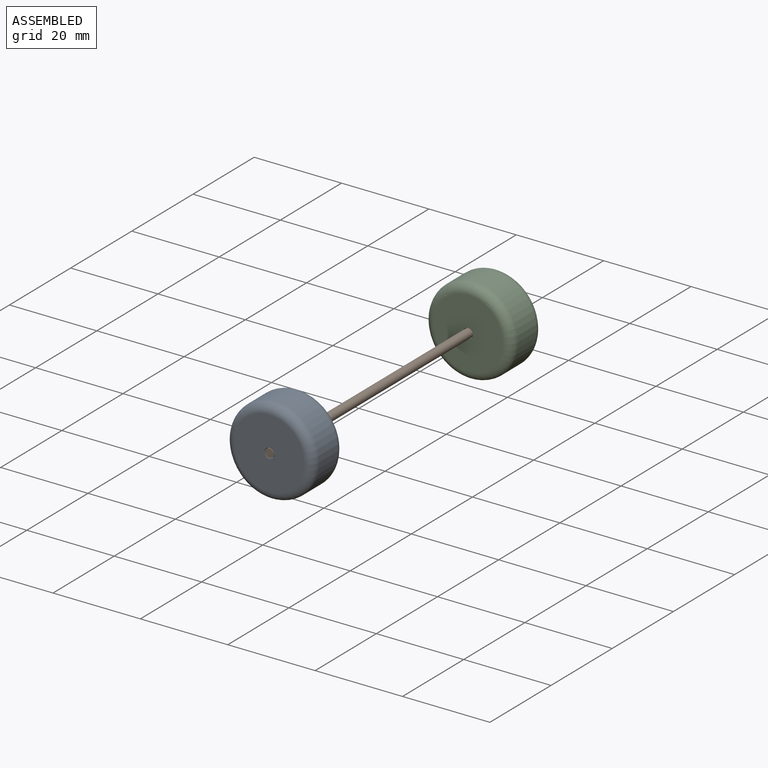
[diagram: assembled view]
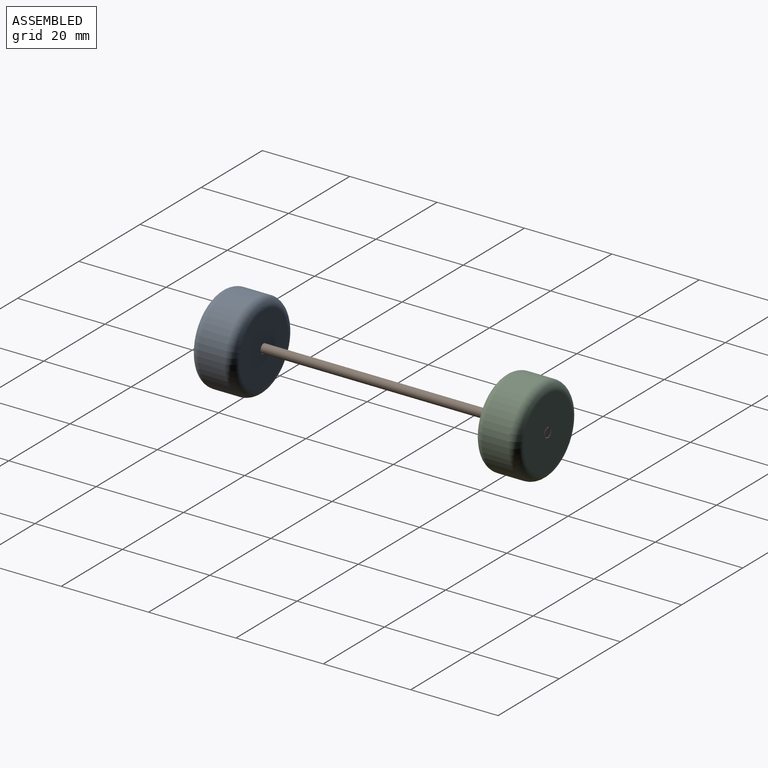
[diagram: assembled view, second angle]
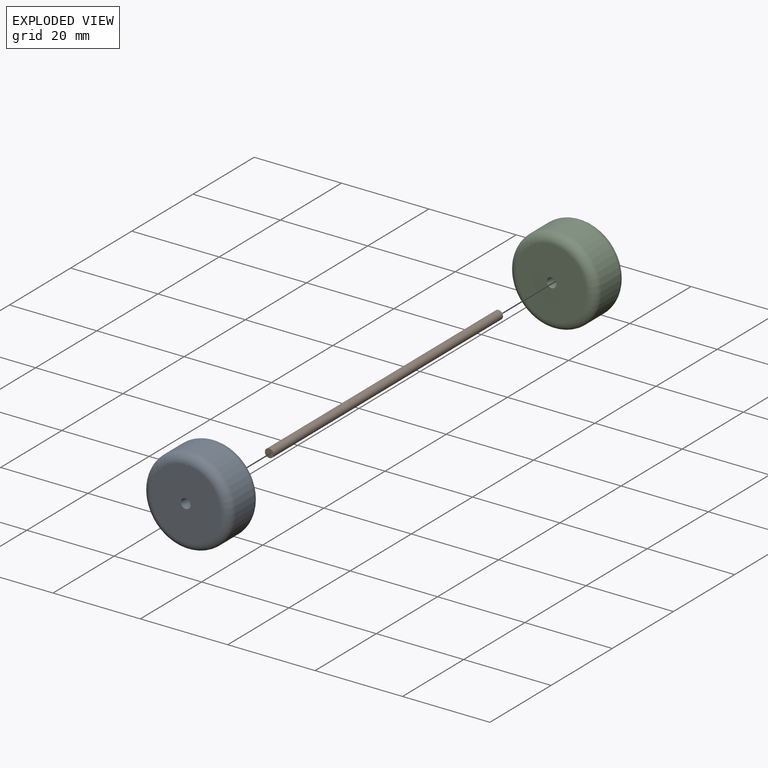
[diagram: exploded view]
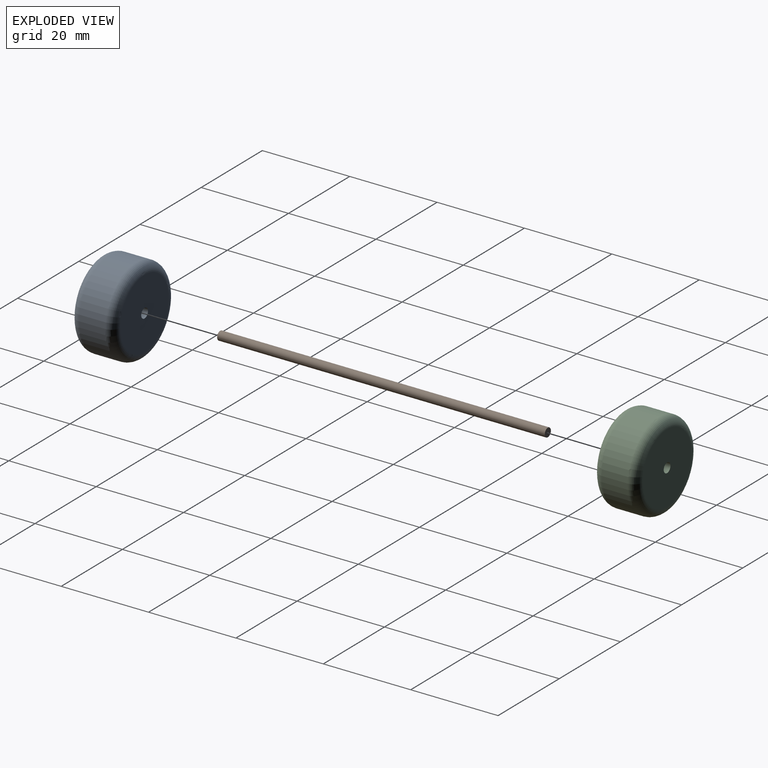
[diagram: exploded view, second angle]
ASSEMBLY  parts=3 mates=2
PART A: 6 faces, bbox 21.6x21.6x10 mm
  f0: cylinder r=1.1mm len=10mm, axis (0,0,-1), area 69.1mm2, adj f2,f3
  f1: cylinder r=10mm len=20mm, axis (0,0,-1), area 377mm2, adj f4,f5
  f2: plane 16x16mm, normal (0,0,1), area 197.3mm2, adj f0,f5
  f3: plane 16x16mm, normal (0,0,-1), area 197.3mm2, adj f0,f4
  f4: torus R=8mm, axis (0,0,1), area 183mm2, adj f1,f3
  f5: torus R=8mm, axis (0,0,1), area 183mm2, adj f1,f2
PART B: 3 faces, bbox 2x75x2 mm
  f0: cylinder r=1mm len=75mm, axis (0,1,0), area 471.2mm2, adj f1,f2
  f1: plane 2x2mm, normal (0,-1,0), area 3.1mm2, adj f0
  f2: plane 2x2mm, normal (0,1,0), area 3.1mm2, adj f0
PART C: same geometry as A
PLACE A rot(axis=(1,0,0),90deg) t=(-28.58,-35.62,7.57)mm
PLACE B t=(-28.58,-8.12,7.57)mm
PLACE C rot(axis=(-1,0,0),90deg) t=(-28.58,19.38,7.57)mm
MATE fastened A.f1 <-> B.f0  axis (0,-1,0) through (-28.58,-45.62,7.57)mm
MATE fastened C.f0 <-> B.f0  axis (0,1,0) through (-28.58,29.38,7.57)mm
